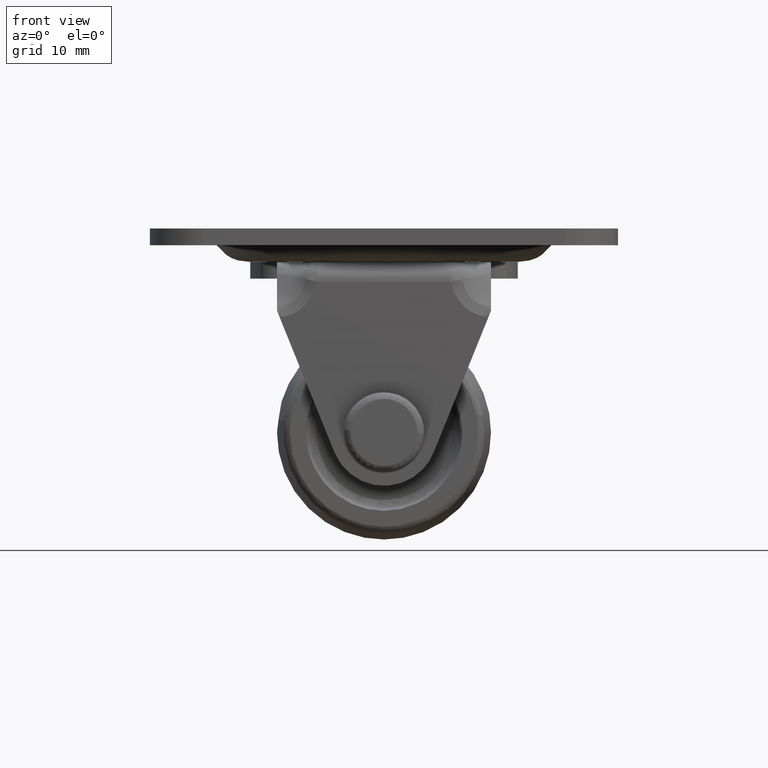
[diagram: clean part render]
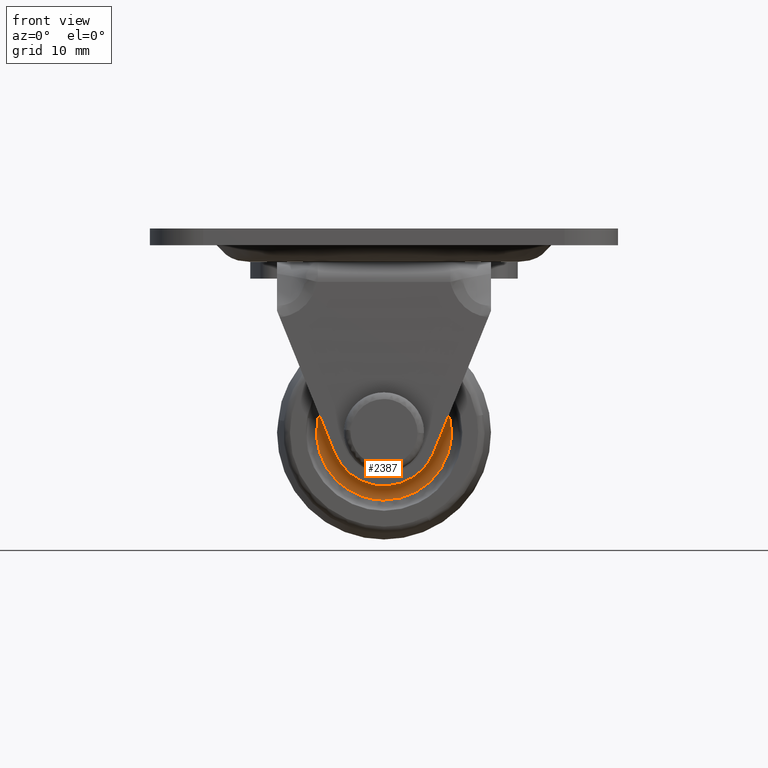
[diagram: same view with one face highlighted and labeled with its STEP entity id]
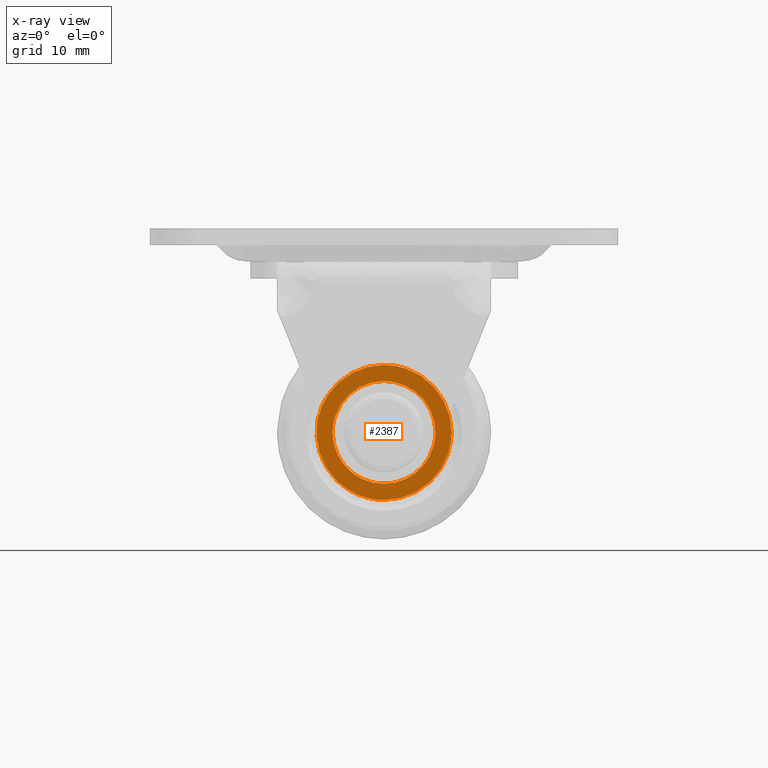
[diagram: x-ray of the same camera — body ghosted, the highlighted face saturated]
A machine part, front view. The second image highlights one B-rep face of the part: STEP entity #2387.
The next image is the same camera in x-ray: the body ghosted, the highlighted face saturated — about 0% of this face is hidden behind the body in this view.
In plain terms, the highlighted face is a freeform B-spline surface patch.
Its self-contained STEP definition (entity closure, byte-faithful):
#955=CARTESIAN_POINT('',(0.0,-8.500000000000000,-7.689825354137818));
#956=VERTEX_POINT('',#955);
#957=CARTESIAN_POINT('',(4.505792347291363,-8.500007316685036,-6.231470492391911));
#958=VERTEX_POINT('',#957);
#959=CARTESIAN_POINT('',(0.0,-8.500000000000000,-7.689825354137818));
#960=CARTESIAN_POINT('',(0.526553675470221,-8.500000855038850,-7.689903431360573));
#961=CARTESIAN_POINT('',(1.479323017841416,-8.500002402183608,-7.591562197807938));
#962=CARTESIAN_POINT('',(3.023041334533765,-8.500004908934935,-7.133363497373772));
#963=CARTESIAN_POINT('',(3.977594349205003,-8.500006458976051,-6.613605752177556));
#964=CARTESIAN_POINT('',(4.505792347291363,-8.500007316685036,-6.231470492391911));
#965=B_SPLINE_CURVE_WITH_KNOTS('',3,(#959,#960,#961,#962,#963,#964),.UNSPECIFIED.,.F.,.U.,(4,1,1,4),(0.000000013443404,1.579655820269588,2.858411933218615,4.814174640932208),.UNSPECIFIED.);
#966=EDGE_CURVE('',#956,#958,#965,.T.);
#1014=CARTESIAN_POINT('',(-5.195167443815835,-8.500007405685945,5.669526343706286));
#1015=VERTEX_POINT('',#1014);
#1021=CARTESIAN_POINT('',(-7.689821354137808,-8.500000000000000,-0.000004560520082));
#1022=VERTEX_POINT('',#1021);
#1023=CARTESIAN_POINT('',(-5.195167443815835,-8.500007405685945,5.669526343706286));
#1024=CARTESIAN_POINT('',(-5.586896713447692,-8.500006936923487,5.310658383204879));
#1025=CARTESIAN_POINT('',(-6.317707385330115,-8.500005860186301,4.486346497530442));
#1026=CARTESIAN_POINT('',(-7.053743384482276,-8.500004148115684,3.175645845105638));
#1027=CARTESIAN_POINT('',(-7.562390371653836,-8.500002168480625,1.660107389730165));
#1028=CARTESIAN_POINT('',(-7.689995271864619,-8.500000824082449,0.630883716457699));
#1029=CARTESIAN_POINT('',(-7.689821354137808,-8.500000000000000,-0.000004560520082));
#1030=B_SPLINE_CURVE_WITH_KNOTS('',3,(#1023,#1024,#1025,#1026,#1027,#1028,#1029),.UNSPECIFIED.,.F.,.U.,(4,1,1,1,4),(0.000000014720222,1.593787198242493,3.287179533301234,4.482523241277567,6.375148055824372),.UNSPECIFIED.);
#1031=EDGE_CURVE('',#1015,#1022,#1030,.T.);
#1033=CARTESIAN_POINT('',(-7.689821354137808,-8.500000000000000,-0.000004560520082));
#1034=CARTESIAN_POINT('',(-7.689848735378068,-8.499999999999993,-0.408934729130462));
#1035=CARTESIAN_POINT('',(-7.626936862501291,-8.500000000000004,-1.195325065124777));
#1036=CARTESIAN_POINT('',(-7.320913918485059,-8.499999999999981,-2.484251397710429));
#1037=CARTESIAN_POINT('',(-6.815353982698608,-8.500000000000091,-3.643944167119981));
#1038=CARTESIAN_POINT('',(-6.155779310367310,-8.499999999999874,-4.644112617903412));
#1039=CARTESIAN_POINT('',(-5.332478849984291,-8.500000000000187,-5.598758374921506));
#1040=CARTESIAN_POINT('',(-4.299112340714303,-8.499999999999933,-6.436248538985420));
#1041=CARTESIAN_POINT('',(-3.154279098907312,-8.500000000000028,-7.039013435300118));
#1042=CARTESIAN_POINT('',(-1.792842905066568,-8.499999999999846,-7.535714300381827));
#1043=CARTESIAN_POINT('',(-0.754993893938342,-8.500000000000092,-7.690175455544342));
#1044=CARTESIAN_POINT('',(0.0,-8.500000000000000,-7.689825354137818));
#1045=B_SPLINE_CURVE_WITH_KNOTS('',3,(#1033,#1034,#1035,#1036,#1037,#1038,#1039,#1040,#1041,#1042,#1043,#1044),.UNSPECIFIED.,.F.,.U.,(4,1,1,1,1,1,1,1,1,4),(0.000000062476083,1.226793992666206,2.359220160260637,3.963504464995458,5.001577350225942,5.945257747822081,7.738234188829479,8.965044533867399,9.814374187320777,12.079218612365800),.UNSPECIFIED.);
#1046=EDGE_CURVE('',#1022,#956,#1045,.T.);
#1073=CARTESIAN_POINT('',(7.689821354137809,-8.500000000000000,-0.000003439479865));
#1074=VERTEX_POINT('',#1073);
#1075=CARTESIAN_POINT('',(4.505792347291363,-8.500007316685036,-6.231470492391911));
#1076=CARTESIAN_POINT('',(4.812420375571789,-8.500007056372288,-6.009767565247717));
#1077=CARTESIAN_POINT('',(5.479977673564656,-8.500006396418311,-5.447698608509559));
#1078=CARTESIAN_POINT('',(6.313751049656244,-8.500005236920881,-4.460178944456755));
#1079=CARTESIAN_POINT('',(7.007118899552117,-8.500003828267392,-3.260458351123269));
#1080=CARTESIAN_POINT('',(7.542246664450118,-8.500002110234513,-1.797245754740681));
#1081=CARTESIAN_POINT('',(7.690022229349889,-8.500000777516025,-0.662197481070745));
#1082=CARTESIAN_POINT('',(7.689821354137809,-8.500000000000000,-0.000003439479865));
#1083=B_SPLINE_CURVE_WITH_KNOTS('',3,(#1075,#1076,#1077,#1078,#1079,#1080,#1081,#1082),.UNSPECIFIED.,.F.,.U.,(4,1,1,1,1,4),(0.000000026296621,1.135153119197574,2.610870507973015,3.859527689057906,5.278479114687871,7.265004068931160),.UNSPECIFIED.);
#1084=EDGE_CURVE('',#958,#1074,#1083,.T.);
#1086=CARTESIAN_POINT('',(0.0,-8.500000000000000,7.689817354137841));
#1087=VERTEX_POINT('',#1086);
#1088=CARTESIAN_POINT('',(7.689821354137809,-8.500000000000000,-0.000003439479865));
#1089=CARTESIAN_POINT('',(7.690223816027825,-8.500000000000021,0.786460296838287));
#1090=CARTESIAN_POINT('',(7.524324776214379,-8.500000000000002,1.855722016386866));
#1091=CARTESIAN_POINT('',(6.988617301698250,-8.499999999999982,3.269890471978076));
#1092=CARTESIAN_POINT('',(6.379762094144868,-8.500000000000034,4.376314422949218));
#1093=CARTESIAN_POINT('',(5.490339157547467,-8.500000000000078,5.446599924667578));
#1094=CARTESIAN_POINT('',(4.519486893201037,-8.499999999999831,6.253260445025967));
#1095=CARTESIAN_POINT('',(3.365821691058969,-8.500000000000370,6.964320534469847));
#1096=CARTESIAN_POINT('',(1.887326537136949,-8.499999999999584,7.534571785817316));
#1097=CARTESIAN_POINT('',(0.629132870153084,-8.500000000000370,7.689970718010633));
#1098=CARTESIAN_POINT('',(0.0,-8.500000000000000,7.689817354137841));
#1099=B_SPLINE_CURVE_WITH_KNOTS('',3,(#1088,#1089,#1090,#1091,#1092,#1093,#1094,#1095,#1096,#1097,#1098),.UNSPECIFIED.,.F.,.U.,(4,1,1,1,1,1,1,1,4),(0.000000062472647,2.359220160257868,3.208545030190535,4.529725239264283,6.133960559663439,7.360768971678613,8.304453759030348,10.191841719693530,12.079218612365819),.UNSPECIFIED.);
#1100=EDGE_CURVE('',#1074,#1087,#1099,.T.);
#1102=CARTESIAN_POINT('',(0.0,-8.500000000000000,7.689817354137841));
#1103=CARTESIAN_POINT('',(-0.505049358895624,-8.500000719945412,7.689874892701094));
#1104=CARTESIAN_POINT('',(-1.485404851809058,-8.500002117437393,7.592891337542540));
#1105=CARTESIAN_POINT('',(-2.714890349467701,-8.500003870063015,7.226340225865354));
#1106=CARTESIAN_POINT('',(-3.980070441562566,-8.500005673571064,6.630035976510316));
#1107=CARTESIAN_POINT('',(-4.735295372328936,-8.500006750140575,6.091155867225131));
#1108=CARTESIAN_POINT('',(-5.195167443815835,-8.500007405685945,5.669526343706286));
#1109=B_SPLINE_CURVE_WITH_KNOTS('',3,(#1102,#1103,#1104,#1105,#1106,#1107,#1108),.UNSPECIFIED.,.F.,.U.,(4,1,1,1,4),(0.000000016810896,1.515144518296200,2.941151559744907,3.832421787931553,5.704071451762588),.UNSPECIFIED.);
#1110=EDGE_CURVE('',#1087,#1015,#1109,.T.);
#1190=CARTESIAN_POINT('',(-3.594356769818432,-8.500000000000000,-9.436528458895321));
#1191=VERTEX_POINT('',#1190);
#1192=CARTESIAN_POINT('',(0.0,-8.500000000000000,-10.097894591817150));
#1193=VERTEX_POINT('',#1192);
#1194=CARTESIAN_POINT('',(-3.594356769818432,-8.500000000000000,-9.436528458895321));
#1195=CARTESIAN_POINT('',(-3.057769367844271,-8.499999999999995,-9.640966498809021));
#1196=CARTESIAN_POINT('',(-1.875719722467888,-8.500000000000020,-9.979021771303785));
#1197=CARTESIAN_POINT('',(-0.650777563407095,-8.499999999999982,-10.097984310070300));
#1198=CARTESIAN_POINT('',(0.0,-8.500000000000000,-10.097894591817150));
#1199=B_SPLINE_CURVE_WITH_KNOTS('',3,(#1194,#1195,#1196,#1197,#1198),.UNSPECIFIED.,.F.,.U.,(4,1,4),(2.428888E-009,1.722640775026693,3.674963185325324),.UNSPECIFIED.);
#1200=EDGE_CURVE('',#1191,#1193,#1199,.T.);
#1219=CARTESIAN_POINT('',(-9.919029191900091,-8.500000000000000,1.892152014769142));
#1220=VERTEX_POINT('',#1219);
#1232=CARTESIAN_POINT('',(0.0,-8.500000000000000,10.097886591817170));
#1233=VERTEX_POINT('',#1232);
#1234=CARTESIAN_POINT('',(0.0,-8.500000000000000,10.097886591817170));
#1235=CARTESIAN_POINT('',(-0.508892755323059,-8.500000000000005,10.097900783240760));
#1236=CARTESIAN_POINT('',(-1.744801473447145,-8.499999999999979,10.004344993183400));
#1237=CARTESIAN_POINT('',(-3.441167848944632,-8.500000000000043,9.554626001325067));
#1238=CARTESIAN_POINT('',(-4.923362828850360,-8.499999999999961,8.851641156418703));
#1239=CARTESIAN_POINT('',(-6.204544106699752,-8.500000000000016,8.016421058346856));
#1240=CARTESIAN_POINT('',(-7.293599296692404,-8.499999999999996,7.043858675149007));
#1241=CARTESIAN_POINT('',(-8.284843884366884,-8.500000000000014,5.831095365281946));
#1242=CARTESIAN_POINT('',(-9.267518799797436,-8.499999999999970,4.210048606406941));
#1243=CARTESIAN_POINT('',(-9.742253687438444,-8.500000000000036,2.820607800442668));
#1244=CARTESIAN_POINT('',(-9.919029191900091,-8.500000000000000,1.892152014769142));
#1245=B_SPLINE_CURVE_WITH_KNOTS('',3,(#1234,#1235,#1236,#1237,#1238,#1239,#1240,#1241,#1242,#1243,#1244),.UNSPECIFIED.,.F.,.U.,(4,1,1,1,1,1,1,1,4),(0.000000039412116,1.526691836303346,3.707698365346825,5.234397021039728,6.433972552052771,8.287772875802547,9.596385217974234,11.123098111039880,13.958389742346199),.UNSPECIFIED.);
#1246=EDGE_CURVE('',#1233,#1220,#1245,.T.);
#1248=CARTESIAN_POINT('',(10.097890591817110,-8.499999999999998,-0.000003002889538));
#1249=VERTEX_POINT('',#1248);
#1250=CARTESIAN_POINT('',(10.097890591817110,-8.499999999999998,-0.000003002889538));
#1251=CARTESIAN_POINT('',(10.098142940826991,-8.499999999999991,0.867462684888091));
#1252=CARTESIAN_POINT('',(9.921111895632480,-8.500000000000018,2.230430409305455));
#1253=CARTESIAN_POINT('',(9.274310768589732,-8.499999999999982,4.110402450536514));
#1254=CARTESIAN_POINT('',(8.463429959695525,-8.500000000000048,5.605406617313156));
#1255=CARTESIAN_POINT('',(7.401244911969603,-8.499999999999940,6.932503709673327));
#1256=CARTESIAN_POINT('',(6.357787147318646,-8.500000000000020,7.878168222004880));
#1257=CARTESIAN_POINT('',(5.106773252799044,-8.500000000000002,8.759337482641517));
#1258=CARTESIAN_POINT('',(3.618339317347888,-8.500000000000004,9.497187023617844));
#1259=CARTESIAN_POINT('',(1.776163341392409,-8.499999999999989,9.994708152790327));
#1260=CARTESIAN_POINT('',(0.578288666967572,-8.500000000000000,10.097934351898530));
#1261=CARTESIAN_POINT('',(0.0,-8.500000000000000,10.097886591817170));
#1262=B_SPLINE_CURVE_WITH_KNOTS('',3,(#1250,#1251,#1252,#1253,#1254,#1255,#1256,#1257,#1258,#1259,#1260,#1261),.UNSPECIFIED.,.F.,.U.,(4,1,1,1,1,1,1,1,1,4),(0.000000011086531,2.602320115031350,4.089378431678831,5.948202352099520,7.683074402185632,9.170104032898848,10.161466325048311,12.268134569272600,14.126959609460190,15.861828413631461),.UNSPECIFIED.);
#1263=EDGE_CURVE('',#1249,#1233,#1262,.T.);
#1265=CARTESIAN_POINT('',(0.0,-8.500000000000000,-10.097894591817150));
#1266=CARTESIAN_POINT('',(0.867467068934838,-8.500000000000002,-10.098150162084060));
#1267=CARTESIAN_POINT('',(2.230428801424980,-8.499999999999984,-9.921105893009347));
#1268=CARTESIAN_POINT('',(4.110413536182286,-8.500000000000012,-9.274328842668719));
#1269=CARTESIAN_POINT('',(5.532468601948001,-8.500000000000016,-8.502965811108314));
#1270=CARTESIAN_POINT('',(6.805888155063867,-8.500000000000012,-7.509141580327387));
#1271=CARTESIAN_POINT('',(7.834032270076119,-8.500000000000009,-6.429236812473806));
#1272=CARTESIAN_POINT('',(8.764182277139549,-8.499999999999984,-5.108587822472528));
#1273=CARTESIAN_POINT('',(9.518794409741885,-8.500000000000060,-3.538237467644134));
#1274=CARTESIAN_POINT('',(9.994715524288575,-8.499999999999975,-1.776164576247318));
#1275=CARTESIAN_POINT('',(10.097939122760060,-8.500000000000000,-0.578292884090495));
#1276=CARTESIAN_POINT('',(10.097890591817110,-8.499999999999998,-0.000003002889538));
#1277=B_SPLINE_CURVE_WITH_KNOTS('',3,(#1265,#1266,#1267,#1268,#1269,#1270,#1271,#1272,#1273,#1274,#1275,#1276),.UNSPECIFIED.,.F.,.U.,(4,1,1,1,1,1,1,1,1,4),(0.000000010736942,2.602320299187097,4.089378721190588,5.948202773169186,7.435236135208886,8.922266490257780,10.409310245038050,12.268135438688461,14.126960610379809,15.861829537614391),.UNSPECIFIED.);
#1278=EDGE_CURVE('',#1193,#1249,#1277,.T.);
#1300=CARTESIAN_POINT('',(-9.919029191900091,-8.500000000000000,1.892152014769142));
#1301=CARTESIAN_POINT('',(-10.029066051670579,-8.499999999999984,1.315471750240928));
#1302=CARTESIAN_POINT('',(-10.166916293651729,-8.500000000000011,-0.040375611225800));
#1303=CARTESIAN_POINT('',(-9.959708537391064,-8.500000000000027,-2.098280610977343));
#1304=CARTESIAN_POINT('',(-9.312848214377288,-8.499999999999991,-4.060276015106645));
#1305=CARTESIAN_POINT('',(-8.361230634617428,-8.500000000000023,-5.764774598002796));
#1306=CARTESIAN_POINT('',(-7.063463622115244,-8.499999999999995,-7.323018822670946));
#1307=CARTESIAN_POINT('',(-5.434210879665471,-8.500000000000000,-8.597141763329883));
#1308=CARTESIAN_POINT('',(-4.177296418043983,-8.500000000000002,-9.214536764109029));
#1309=CARTESIAN_POINT('',(-3.594356769818432,-8.500000000000000,-9.436528458895321));
#1310=B_SPLINE_CURVE_WITH_KNOTS('',3,(#1300,#1301,#1302,#1303,#1304,#1305,#1306,#1307,#1308,#1309),.UNSPECIFIED.,.F.,.U.,(4,1,1,1,1,1,1,4),(0.000000041209459,1.761268699718970,4.072971717845222,6.164491559743453,7.925769624418614,9.907209981050917,12.218914349667269,14.090263370728120),.UNSPECIFIED.);
#1311=EDGE_CURVE('',#1220,#1191,#1310,.T.);
#2367=CARTESIAN_POINT('',(-11.106649124850760,-8.500000000000000,-11.106674012379880));
#2368=CARTESIAN_POINT('',(-11.106649124850760,-8.500000000000000,11.106666373508620));
#2369=CARTESIAN_POINT('',(11.106669379757030,-8.500000000000000,-11.106674012379880));
#2370=CARTESIAN_POINT('',(11.106669379757030,-8.500000000000000,11.106666373508620));
#2371=B_SPLINE_SURFACE_WITH_KNOTS('',1,1,((#2367,#2369),(#2368,#2370)),.UNSPECIFIED.,.F.,.F.,.U.,(2,2),(2,2),(0.0,22.213340385888500),(0.0,22.213318504607791),.UNSPECIFIED.);
#2372=ORIENTED_EDGE('',*,*,#1278,.T.);
#2373=ORIENTED_EDGE('',*,*,#1263,.T.);
#2374=ORIENTED_EDGE('',*,*,#1246,.T.);
#2375=ORIENTED_EDGE('',*,*,#1311,.T.);
#2376=ORIENTED_EDGE('',*,*,#1200,.T.);
#2377=EDGE_LOOP('',(#2372,#2373,#2374,#2375,#2376));
#2378=FACE_OUTER_BOUND('',#2377,.T.);
#2379=ORIENTED_EDGE('',*,*,#1100,.F.);
#2380=ORIENTED_EDGE('',*,*,#1084,.F.);
#2381=ORIENTED_EDGE('',*,*,#966,.F.);
#2382=ORIENTED_EDGE('',*,*,#1046,.F.);
#2383=ORIENTED_EDGE('',*,*,#1031,.F.);
#2384=ORIENTED_EDGE('',*,*,#1110,.F.);
#2385=EDGE_LOOP('',(#2379,#2380,#2381,#2382,#2383,#2384));
#2386=FACE_BOUND('',#2385,.T.);
#2387=ADVANCED_FACE('',(#2378,#2386),#2371,.F.);